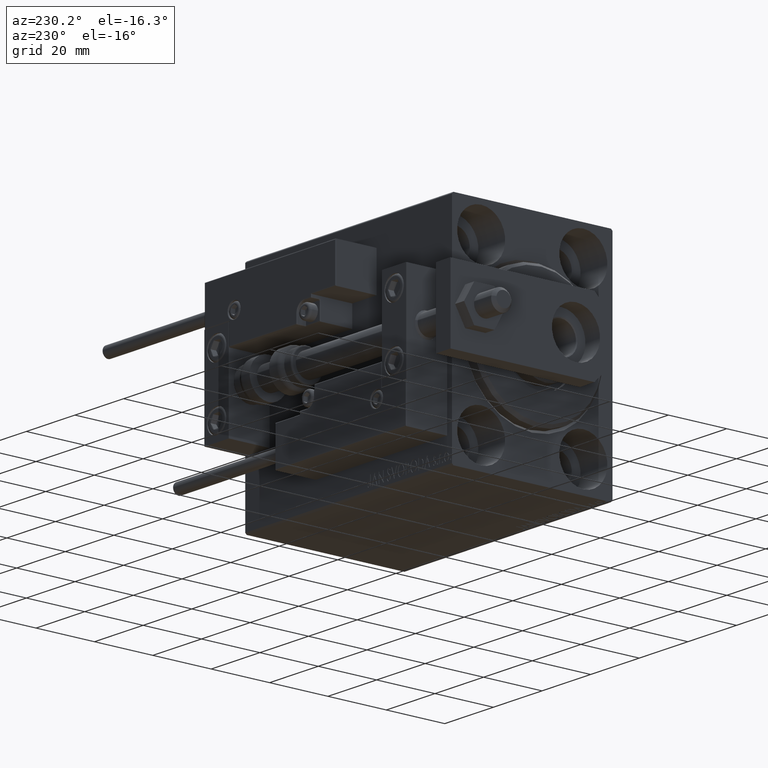
[diagram: clean part render]
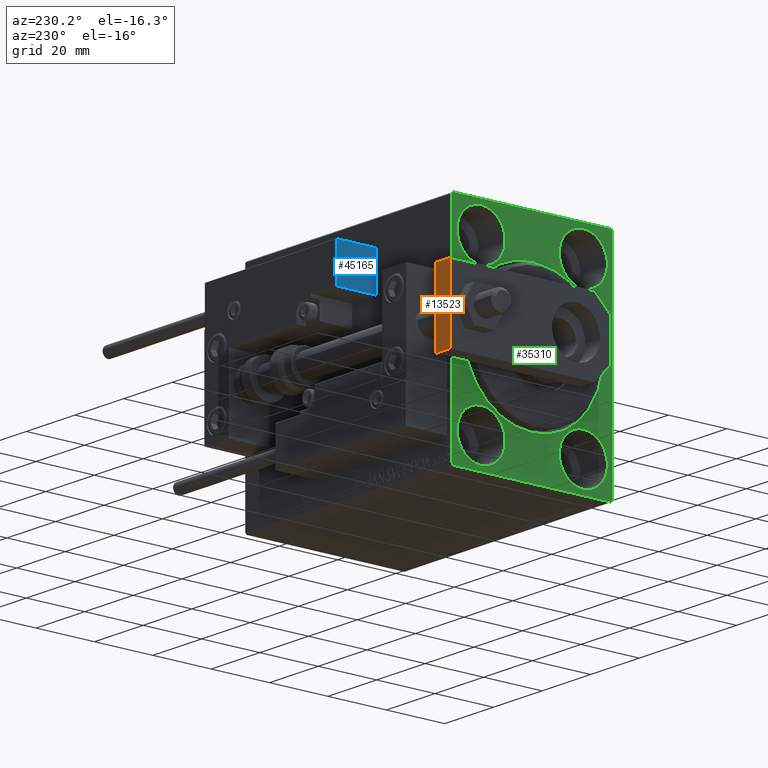
[diagram: same view with three faces highlighted in distinct colors, each labeled with its STEP entity id]
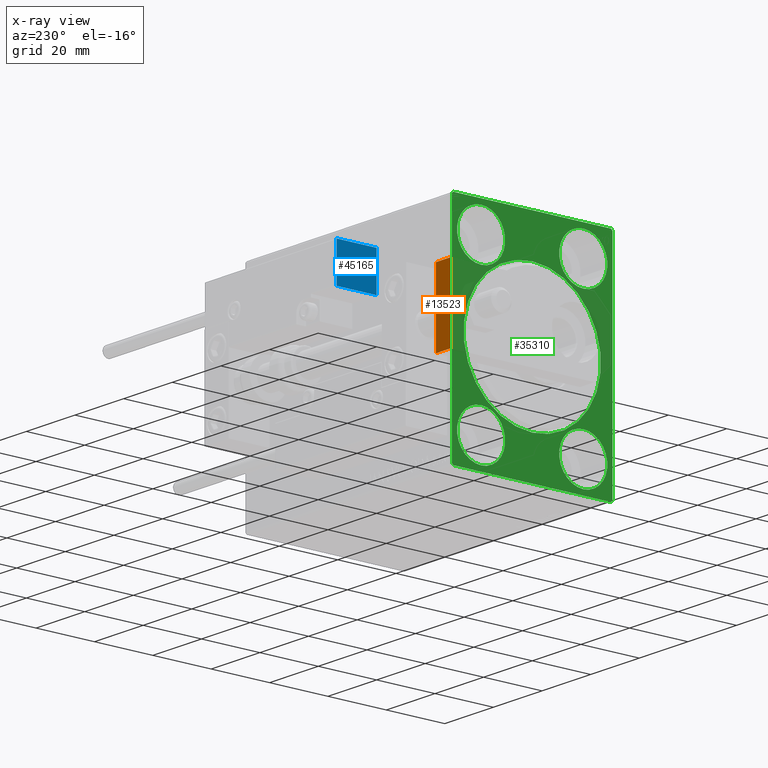
[diagram: x-ray of the same camera — body ghosted, the three highlighted faces saturated]
A machine part, auxiliary view with three faces highlighted in distinct colors.
The next image is the same camera in x-ray (body ghosted, the three faces saturated) — at least one of them is partly hidden behind the body in this view.
Their STEP definitions:

[orange] entity #13523 — the highlighted planar face has unit normal (0, -1, 0).
#3713 = EDGE_LOOP ( 'NONE', ( #43148, #31355, #46174, #42148 ) ) ;
#4052 = CARTESIAN_POINT ( 'NONE',  ( 12.50000000000000000, 55.00000000000000000, 0.000000000000000000 ) ) ;
#4285 = LINE ( 'NONE', #35058, #12305 ) ;
#5008 = CARTESIAN_POINT ( 'NONE',  ( 12.50000000000000000, 55.00000000000000000, 6.000000000000000000 ) ) ;
#10869 = VECTOR ( 'NONE', #42870, 1000.000000000000000 ) ;
#12107 = CARTESIAN_POINT ( 'NONE',  ( 12.50000000000000000, 55.00000000000000000, 6.000000000000000000 ) ) ;
#12305 = VECTOR ( 'NONE', #38609, 1000.000000000000000 ) ;
#12990 = EDGE_CURVE ( 'NONE', #25297, #26589, #46984, .T. ) ;
#13295 = FACE_OUTER_BOUND ( 'NONE', #3713, .T. ) ;
#13523 = ADVANCED_FACE ( 'NONE', ( #13295 ), #21613, .F. ) ;
#14929 = EDGE_CURVE ( 'NONE', #29411, #16383, #4285, .T. ) ;
#16383 = VERTEX_POINT ( 'NONE', #35945 ) ;
#16458 = CARTESIAN_POINT ( 'NONE',  ( -12.49999999999999822, 55.00000000000000000, 6.000000000000000000 ) ) ;
#17336 = CARTESIAN_POINT ( 'NONE',  ( 12.50000000000000000, 55.00000000000000000, 6.000000000000000000 ) ) ;
#19953 = EDGE_CURVE ( 'NONE', #29411, #25297, #23205, .T. ) ;
#21362 = DIRECTION ( 'NONE',  ( 0.000000000000000000, -0.000000000000000000, -1.000000000000000000 ) ) ;
#21613 = PLANE ( 'NONE',  #30090 ) ;
#22127 = VECTOR ( 'NONE', #43406, 1000.000000000000000 ) ;
#23205 = LINE ( 'NONE', #12107, #10869 ) ;
#23761 = DIRECTION ( 'NONE',  ( -0.000000000000000000, -0.000000000000000000, -1.000000000000000000 ) ) ;
#24550 = CARTESIAN_POINT ( 'NONE',  ( -12.49999999999999822, 55.00000000000000000, 6.000000000000000000 ) ) ;
#25260 = VECTOR ( 'NONE', #23761, 1000.000000000000000 ) ;
#25297 = VERTEX_POINT ( 'NONE', #24550 ) ;
#26589 = VERTEX_POINT ( 'NONE', #40270 ) ;
#29411 = VERTEX_POINT ( 'NONE', #5008 ) ;
#30090 = AXIS2_PLACEMENT_3D ( 'NONE', #17336, #40519, #21362 ) ;
#31355 = ORIENTED_EDGE ( 'NONE', *, *, #12990, .F. ) ;
#35058 = CARTESIAN_POINT ( 'NONE',  ( 12.50000000000000000, 55.00000000000000000, 6.000000000000000000 ) ) ;
#35945 = CARTESIAN_POINT ( 'NONE',  ( 12.50000000000000000, 55.00000000000000000, 0.000000000000000000 ) ) ;
#38609 = DIRECTION ( 'NONE',  ( -0.000000000000000000, -0.000000000000000000, -1.000000000000000000 ) ) ;
#40270 = CARTESIAN_POINT ( 'NONE',  ( -12.49999999999999822, 55.00000000000000000, 0.000000000000000000 ) ) ;
#40519 = DIRECTION ( 'NONE',  ( 0.000000000000000000, -1.000000000000000000, 0.000000000000000000 ) ) ;
#42148 = ORIENTED_EDGE ( 'NONE', *, *, #14929, .T. ) ;
#42870 = DIRECTION ( 'NONE',  ( -1.000000000000000000, 0.000000000000000000, 0.000000000000000000 ) ) ;
#43148 = ORIENTED_EDGE ( 'NONE', *, *, #44090, .T. ) ;
#43406 = DIRECTION ( 'NONE',  ( -1.000000000000000000, 0.000000000000000000, 0.000000000000000000 ) ) ;
#44090 = EDGE_CURVE ( 'NONE', #16383, #26589, #46706, .T. ) ;
#46174 = ORIENTED_EDGE ( 'NONE', *, *, #19953, .F. ) ;
#46706 = LINE ( 'NONE', #4052, #22127 ) ;
#46984 = LINE ( 'NONE', #16458, #25260 ) ;

[blue] entity #45165 — the highlighted planar face has unit normal (1, -0, -0).
#321 = EDGE_LOOP ( 'NONE', ( #13990, #7699, #45950, #40225 ) ) ;
#2483 = CARTESIAN_POINT ( 'NONE',  ( 27.00000000000006395, 20.00000000000001776, 14.00000000000000000 ) ) ;
#3497 = VERTEX_POINT ( 'NONE', #23755 ) ;
#3789 = VECTOR ( 'NONE', #31822, 1000.000000000000000 ) ;
#5933 = EDGE_CURVE ( 'NONE', #30306, #3497, #46813, .T. ) ;
#7699 = ORIENTED_EDGE ( 'NONE', *, *, #26133, .T. ) ;
#8297 = VERTEX_POINT ( 'NONE', #30192 ) ;
#10311 = DIRECTION ( 'NONE',  ( -0.000000000000000000, -0.000000000000000000, -1.000000000000000000 ) ) ;
#11209 = CARTESIAN_POINT ( 'NONE',  ( 27.00000000000006395, 20.00000000000001776, 13.70000000000000107 ) ) ;
#12448 = CARTESIAN_POINT ( 'NONE',  ( 27.00000000000006395, 7.000000000000007994, 14.00000000000000000 ) ) ;
#12500 = AXIS2_PLACEMENT_3D ( 'NONE', #12448, #48027, #20515 ) ;
#13252 = CARTESIAN_POINT ( 'NONE',  ( 27.00000000000006395, 7.000000000000007994, 14.00000000000000000 ) ) ;
#13455 = PLANE ( 'NONE',  #12500 ) ;
#13953 = VECTOR ( 'NONE', #10311, 1000.000000000000000 ) ;
#13990 = ORIENTED_EDGE ( 'NONE', *, *, #36344, .F. ) ;
#16556 = VERTEX_POINT ( 'NONE', #11209 ) ;
#16706 = LINE ( 'NONE', #23265, #3789 ) ;
#19907 = VECTOR ( 'NONE', #21982, 1000.000000000000000 ) ;
#20515 = DIRECTION ( 'NONE',  ( 0.000000000000000000, 0.000000000000000000, 1.000000000000000000 ) ) ;
#21982 = DIRECTION ( 'NONE',  ( -0.000000000000000000, -1.000000000000000000, -0.000000000000000000 ) ) ;
#22471 = LINE ( 'NONE', #44929, #19907 ) ;
#23265 = CARTESIAN_POINT ( 'NONE',  ( 27.00000000000006395, 7.000000000000007994, 0.000000000000000000 ) ) ;
#23755 = CARTESIAN_POINT ( 'NONE',  ( 27.00000000000006395, 7.000000000000007994, 0.000000000000000000 ) ) ;
#25938 = EDGE_CURVE ( 'NONE', #3497, #8297, #16706, .T. ) ;
#26133 = EDGE_CURVE ( 'NONE', #16556, #30306, #22471, .T. ) ;
#30192 = CARTESIAN_POINT ( 'NONE',  ( 27.00000000000006395, 20.00000000000001776, 0.000000000000000000 ) ) ;
#30306 = VERTEX_POINT ( 'NONE', #31687 ) ;
#31687 = CARTESIAN_POINT ( 'NONE',  ( 27.00000000000006395, 7.000000000000007994, 13.70000000000000107 ) ) ;
#31822 = DIRECTION ( 'NONE',  ( 0.000000000000000000, 1.000000000000000000, 0.000000000000000000 ) ) ;
#35434 = DIRECTION ( 'NONE',  ( -0.000000000000000000, -0.000000000000000000, -1.000000000000000000 ) ) ;
#36288 = VECTOR ( 'NONE', #35434, 1000.000000000000000 ) ;
#36344 = EDGE_CURVE ( 'NONE', #16556, #8297, #44871, .T. ) ;
#40225 = ORIENTED_EDGE ( 'NONE', *, *, #25938, .T. ) ;
#40429 = FACE_OUTER_BOUND ( 'NONE', #321, .T. ) ;
#44871 = LINE ( 'NONE', #2483, #13953 ) ;
#44929 = CARTESIAN_POINT ( 'NONE',  ( 27.00000000000006395, 7.000000000000007994, 13.70000000000000107 ) ) ;
#45165 = ADVANCED_FACE ( 'NONE', ( #40429 ), #13455, .F. ) ;
#45950 = ORIENTED_EDGE ( 'NONE', *, *, #5933, .T. ) ;
#46813 = LINE ( 'NONE', #13252, #36288 ) ;
#48027 = DIRECTION ( 'NONE',  ( -1.000000000000000000, 0.000000000000000000, 0.000000000000000000 ) ) ;

[green] entity #35310 — the highlighted planar face has unit normal (1, 0, 0).
#213 = DIRECTION ( 'NONE',  ( 0.000000000000000000, 0.000000000000000000, 1.000000000000000000 ) ) ;
#445 = AXIS2_PLACEMENT_3D ( 'NONE', #12811, #31220, #43326 ) ;
#453 = EDGE_CURVE ( 'NONE', #10582, #17920, #1209, .T. ) ;
#509 = CARTESIAN_POINT ( 'NONE',  ( 0.000000000000000000, 27.50000000000000355, -37.50000000000000000 ) ) ;
#747 = CIRCLE ( 'NONE', #15243, 8.250000000000000000 ) ;
#1039 = CARTESIAN_POINT ( 'NONE',  ( 0.000000000000000000, 27.50000000000000355, -37.00000000000000000 ) ) ;
#1209 = LINE ( 'NONE', #47398, #42496 ) ;
#1260 = EDGE_CURVE ( 'NONE', #44784, #21614, #3849, .T. ) ;
#2741 = EDGE_CURVE ( 'NONE', #21614, #44784, #747, .T. ) ;
#2848 = CARTESIAN_POINT ( 'NONE',  ( 0.000000000000000000, 17.49999999999999645, -27.50000000000000355 ) ) ;
#2966 = AXIS2_PLACEMENT_3D ( 'NONE', #45280, #26099, #46278 ) ;
#3422 = AXIS2_PLACEMENT_3D ( 'NONE', #40537, #21383, #36751 ) ;
#3454 = EDGE_CURVE ( 'NONE', #25897, #10338, #13694, .T. ) ;
#3849 = CIRCLE ( 'NONE', #20796, 8.250000000000000000 ) ;
#5226 = VERTEX_POINT ( 'NONE', #25868 ) ;
#5256 = DIRECTION ( 'NONE',  ( 0.000000000000000000, 1.000000000000000000, 0.000000000000000000 ) ) ;
#5457 = CARTESIAN_POINT ( 'NONE',  ( 0.000000000000000000, -17.49999999999999645, 27.49999999999999645 ) ) ;
#5553 = VERTEX_POINT ( 'NONE', #33584 ) ;
#6161 = CARTESIAN_POINT ( 'NONE',  ( 0.000000000000000000, 27.49999999999999645, 37.50000000000000711 ) ) ;
#6650 = DIRECTION ( 'NONE',  ( -1.000000000000000000, 0.000000000000000000, 0.000000000000000000 ) ) ;
#6673 = DIRECTION ( 'NONE',  ( -1.000000000000000000, 0.000000000000000000, 0.000000000000000000 ) ) ;
#6728 = FACE_BOUND ( 'NONE', #41739, .T. ) ;
#7085 = CARTESIAN_POINT ( 'NONE',  ( 0.000000000000000000, -27.00000000000000355, -37.50000000000000000 ) ) ;
#7581 = DIRECTION ( 'NONE',  ( 1.000000000000000000, 0.000000000000000000, 0.000000000000000000 ) ) ;
#7760 = AXIS2_PLACEMENT_3D ( 'NONE', #17104, #41041, #28692 ) ;
#7955 = CARTESIAN_POINT ( 'NONE',  ( 0.000000000000000000, -27.00000000000000355, -37.50000000000000000 ) ) ;
#8106 = CARTESIAN_POINT ( 'NONE',  ( 0.000000000000000000, 17.50000000000000355, 35.74999999999999289 ) ) ;
#8532 = ORIENTED_EDGE ( 'NONE', *, *, #24110, .F. ) ;
#8577 = VERTEX_POINT ( 'NONE', #8106 ) ;
#8799 = CARTESIAN_POINT ( 'NONE',  ( 0.000000000000000000, -17.50000000000000355, -27.50000000000000355 ) ) ;
#9356 = EDGE_CURVE ( 'NONE', #37621, #29883, #35596, .T. ) ;
#9621 = EDGE_CURVE ( 'NONE', #42504, #18060, #24254, .T. ) ;
#9760 = CARTESIAN_POINT ( 'NONE',  ( 0.000000000000000000, -17.49999999999999645, 35.74999999999999289 ) ) ;
#10338 = VERTEX_POINT ( 'NONE', #28663 ) ;
#10582 = VERTEX_POINT ( 'NONE', #29897 ) ;
#10720 = ORIENTED_EDGE ( 'NONE', *, *, #453, .F. ) ;
#10881 = DIRECTION ( 'NONE',  ( 0.000000000000000000, 0.000000000000000000, -1.000000000000000000 ) ) ;
#12811 = CARTESIAN_POINT ( 'NONE',  ( 0.000000000000000000, 0.000000000000000000, 0.000000000000000000 ) ) ;
#12858 = AXIS2_PLACEMENT_3D ( 'NONE', #2848, #44983, #18258 ) ;
#12866 = EDGE_LOOP ( 'NONE', ( #48806, #30926 ) ) ;
#13398 = CIRCLE ( 'NONE', #7760, 8.249999999999992895 ) ;
#13483 = DIRECTION ( 'NONE',  ( 0.000000000000000000, 0.000000000000000000, 1.000000000000000000 ) ) ;
#13694 = CIRCLE ( 'NONE', #12858, 8.250000000000000000 ) ;
#14516 = EDGE_CURVE ( 'NONE', #10338, #25897, #49375, .T. ) ;
#14819 = EDGE_CURVE ( 'NONE', #22672, #5226, #35655, .T. ) ;
#14941 = EDGE_CURVE ( 'NONE', #42504, #20061, #19694, .T. ) ;
#15243 = AXIS2_PLACEMENT_3D ( 'NONE', #8799, #39563, #34771 ) ;
#15415 = CARTESIAN_POINT ( 'NONE',  ( 0.000000000000000000, 0.000000000000000000, 0.000000000000000000 ) ) ;
#15808 = AXIS2_PLACEMENT_3D ( 'NONE', #21819, #6673, #37444 ) ;
#15920 = DIRECTION ( 'NONE',  ( 0.000000000000000000, -9.251858538542970348E-17, 1.000000000000000000 ) ) ;
#16493 = ORIENTED_EDGE ( 'NONE', *, *, #44533, .F. ) ;
#16744 = VERTEX_POINT ( 'NONE', #38431 ) ;
#17101 = FACE_BOUND ( 'NONE', #12866, .T. ) ;
#17104 = CARTESIAN_POINT ( 'NONE',  ( 0.000000000000000000, 17.50000000000000355, 27.49999999999999645 ) ) ;
#17283 = LINE ( 'NONE', #6161, #38023 ) ;
#17920 = VERTEX_POINT ( 'NONE', #49218 ) ;
#17942 = AXIS2_PLACEMENT_3D ( 'NONE', #15415, #7581, #10881 ) ;
#18060 = VERTEX_POINT ( 'NONE', #46170 ) ;
#18258 = DIRECTION ( 'NONE',  ( 0.000000000000000000, 0.000000000000000000, 1.000000000000000000 ) ) ;
#18880 = EDGE_CURVE ( 'NONE', #16744, #20061, #45741, .T. ) ;
#19099 = ORIENTED_EDGE ( 'NONE', *, *, #26189, .T. ) ;
#19146 = EDGE_CURVE ( 'NONE', #37831, #17920, #22720, .T. ) ;
#19537 = ORIENTED_EDGE ( 'NONE', *, *, #34678, .F. ) ;
#19693 = VECTOR ( 'NONE', #38655, 1000.000000000000000 ) ;
#19694 = LINE ( 'NONE', #509, #34830 ) ;
#20061 = VERTEX_POINT ( 'NONE', #47674 ) ;
#20294 = VECTOR ( 'NONE', #43931, 1000.000000000000114 ) ;
#20732 = VECTOR ( 'NONE', #45677, 1000.000000000000114 ) ;
#20796 = AXIS2_PLACEMENT_3D ( 'NONE', #43097, #23924, #213 ) ;
#20809 = DIRECTION ( 'NONE',  ( 0.000000000000000000, -1.000000000000000000, -1.261617073437677999E-16 ) ) ;
#20890 = DIRECTION ( 'NONE',  ( 0.000000000000000000, 0.000000000000000000, -1.000000000000000000 ) ) ;
#21063 = CARTESIAN_POINT ( 'NONE',  ( 0.000000000000000000, 27.50000000000000355, -37.00000000000000000 ) ) ;
#21098 = DIRECTION ( 'NONE',  ( 0.000000000000000000, 0.000000000000000000, 1.000000000000000000 ) ) ;
#21146 = LINE ( 'NONE', #39553, #40646 ) ;
#21383 = DIRECTION ( 'NONE',  ( 1.000000000000000000, 0.000000000000000000, 0.000000000000000000 ) ) ;
#21614 = VERTEX_POINT ( 'NONE', #26623 ) ;
#21819 = CARTESIAN_POINT ( 'NONE',  ( 0.000000000000000000, 17.50000000000000355, 27.49999999999999645 ) ) ;
#22215 = CIRCLE ( 'NONE', #445, 23.50000000000000355 ) ;
#22672 = VERTEX_POINT ( 'NONE', #44633 ) ;
#22720 = LINE ( 'NONE', #7085, #46270 ) ;
#22776 = EDGE_CURVE ( 'NONE', #5226, #22672, #22215, .T. ) ;
#22791 = EDGE_LOOP ( 'NONE', ( #47801, #39690 ) ) ;
#23132 = CIRCLE ( 'NONE', #2966, 8.249999999999992895 ) ;
#23275 = ORIENTED_EDGE ( 'NONE', *, *, #23646, .F. ) ;
#23646 = EDGE_CURVE ( 'NONE', #38041, #8577, #13398, .T. ) ;
#23924 = DIRECTION ( 'NONE',  ( -1.000000000000000000, 0.000000000000000000, 0.000000000000000000 ) ) ;
#24110 = EDGE_CURVE ( 'NONE', #8577, #38041, #35107, .T. ) ;
#24254 = LINE ( 'NONE', #1039, #20294 ) ;
#25146 = PLANE ( 'NONE',  #3422 ) ;
#25797 = ORIENTED_EDGE ( 'NONE', *, *, #9356, .F. ) ;
#25868 = CARTESIAN_POINT ( 'NONE',  ( 0.000000000000000000, 2.877919977996280715E-15, -23.50000000000000355 ) ) ;
#25897 = VERTEX_POINT ( 'NONE', #41450 ) ;
#26047 = DIRECTION ( 'NONE',  ( -1.000000000000000000, 0.000000000000000000, 0.000000000000000000 ) ) ;
#26099 = DIRECTION ( 'NONE',  ( -1.000000000000000000, 0.000000000000000000, 0.000000000000000000 ) ) ;
#26189 = EDGE_CURVE ( 'NONE', #10582, #5553, #34553, .T. ) ;
#26325 = CARTESIAN_POINT ( 'NONE',  ( 0.000000000000000000, 17.50000000000000355, 19.25000000000000000 ) ) ;
#26623 = CARTESIAN_POINT ( 'NONE',  ( 0.000000000000000000, -17.50000000000000355, -35.75000000000000711 ) ) ;
#26754 = ORIENTED_EDGE ( 'NONE', *, *, #19146, .T. ) ;
#27482 = ORIENTED_EDGE ( 'NONE', *, *, #3454, .F. ) ;
#27518 = AXIS2_PLACEMENT_3D ( 'NONE', #5457, #26047, #21098 ) ;
#28663 = CARTESIAN_POINT ( 'NONE',  ( 0.000000000000000000, 17.49999999999999645, -35.75000000000000711 ) ) ;
#28689 = FACE_BOUND ( 'NONE', #22791, .T. ) ;
#28692 = DIRECTION ( 'NONE',  ( 0.000000000000000000, 0.000000000000000000, 1.000000000000000000 ) ) ;
#28711 = EDGE_CURVE ( 'NONE', #29883, #37621, #23132, .T. ) ;
#29883 = VERTEX_POINT ( 'NONE', #35595 ) ;
#29897 = CARTESIAN_POINT ( 'NONE',  ( 0.000000000000000000, -27.50000000000000355, 37.00000000000000000 ) ) ;
#30808 = AXIS2_PLACEMENT_3D ( 'NONE', #48057, #6650, #13483 ) ;
#30926 = ORIENTED_EDGE ( 'NONE', *, *, #22776, .T. ) ;
#31080 = CARTESIAN_POINT ( 'NONE',  ( 0.000000000000000000, 26.99999999999999645, 37.50000000000000711 ) ) ;
#31220 = DIRECTION ( 'NONE',  ( 1.000000000000000000, 0.000000000000000000, 0.000000000000000000 ) ) ;
#31589 = ORIENTED_EDGE ( 'NONE', *, *, #18880, .T. ) ;
#32720 = FACE_BOUND ( 'NONE', #38324, .T. ) ;
#33584 = CARTESIAN_POINT ( 'NONE',  ( 0.000000000000000000, -27.00000000000000355, 37.50000000000000000 ) ) ;
#33826 = DIRECTION ( 'NONE',  ( -0.000000000000000000, -0.7071067811865474617, 0.7071067811865474617 ) ) ;
#34320 = ORIENTED_EDGE ( 'NONE', *, *, #14516, .F. ) ;
#34553 = LINE ( 'NONE', #38090, #20732 ) ;
#34661 = ORIENTED_EDGE ( 'NONE', *, *, #28711, .F. ) ;
#34678 = EDGE_CURVE ( 'NONE', #16744, #5553, #17283, .T. ) ;
#34771 = DIRECTION ( 'NONE',  ( 0.000000000000000000, 0.000000000000000000, 1.000000000000000000 ) ) ;
#34830 = VECTOR ( 'NONE', #15920, 1000.000000000000000 ) ;
#35107 = CIRCLE ( 'NONE', #15808, 8.249999999999992895 ) ;
#35310 = ADVANCED_FACE ( 'NONE', ( #17101, #32720, #47885, #6728, #28689, #44079 ), #25146, .F. ) ;
#35595 = CARTESIAN_POINT ( 'NONE',  ( 0.000000000000000000, -17.49999999999999645, 19.25000000000000000 ) ) ;
#35596 = CIRCLE ( 'NONE', #27518, 8.249999999999992895 ) ;
#35655 = CIRCLE ( 'NONE', #17942, 23.50000000000000355 ) ;
#35866 = ORIENTED_EDGE ( 'NONE', *, *, #14941, .F. ) ;
#36751 = DIRECTION ( 'NONE',  ( 0.000000000000000000, 0.000000000000000000, -1.000000000000000000 ) ) ;
#37006 = ORIENTED_EDGE ( 'NONE', *, *, #9621, .T. ) ;
#37444 = DIRECTION ( 'NONE',  ( 0.000000000000000000, 0.000000000000000000, 1.000000000000000000 ) ) ;
#37621 = VERTEX_POINT ( 'NONE', #9760 ) ;
#37758 = EDGE_LOOP ( 'NONE', ( #25797, #34661 ) ) ;
#37831 = VERTEX_POINT ( 'NONE', #7955 ) ;
#38023 = VECTOR ( 'NONE', #20809, 1000.000000000000000 ) ;
#38041 = VERTEX_POINT ( 'NONE', #26325 ) ;
#38090 = CARTESIAN_POINT ( 'NONE',  ( 0.000000000000000000, -27.50000000000000355, 37.00000000000000000 ) ) ;
#38324 = EDGE_LOOP ( 'NONE', ( #27482, #34320 ) ) ;
#38431 = CARTESIAN_POINT ( 'NONE',  ( 0.000000000000000000, 26.99999999999999645, 37.50000000000000711 ) ) ;
#38655 = DIRECTION ( 'NONE',  ( -0.000000000000000000, 0.7071067811865524577, -0.7071067811865426878 ) ) ;
#39553 = CARTESIAN_POINT ( 'NONE',  ( 0.000000000000000000, -27.50000000000000355, -37.50000000000000000 ) ) ;
#39563 = DIRECTION ( 'NONE',  ( -1.000000000000000000, 0.000000000000000000, 0.000000000000000000 ) ) ;
#39690 = ORIENTED_EDGE ( 'NONE', *, *, #2741, .F. ) ;
#40537 = CARTESIAN_POINT ( 'NONE',  ( 0.000000000000000000, 0.000000000000000000, 0.000000000000000000 ) ) ;
#40646 = VECTOR ( 'NONE', #5256, 1000.000000000000000 ) ;
#40710 = CARTESIAN_POINT ( 'NONE',  ( 0.000000000000000000, -17.50000000000000355, -19.25000000000000355 ) ) ;
#41041 = DIRECTION ( 'NONE',  ( -1.000000000000000000, 0.000000000000000000, 0.000000000000000000 ) ) ;
#41450 = CARTESIAN_POINT ( 'NONE',  ( 0.000000000000000000, 17.49999999999999645, -19.25000000000000355 ) ) ;
#41739 = EDGE_LOOP ( 'NONE', ( #8532, #23275 ) ) ;
#42496 = VECTOR ( 'NONE', #20890, 1000.000000000000000 ) ;
#42504 = VERTEX_POINT ( 'NONE', #21063 ) ;
#43097 = CARTESIAN_POINT ( 'NONE',  ( 0.000000000000000000, -17.50000000000000355, -27.50000000000000355 ) ) ;
#43326 = DIRECTION ( 'NONE',  ( 0.000000000000000000, 0.000000000000000000, -1.000000000000000000 ) ) ;
#43931 = DIRECTION ( 'NONE',  ( 0.000000000000000000, -0.7071067811865474617, -0.7071067811865474617 ) ) ;
#44079 = FACE_OUTER_BOUND ( 'NONE', #49807, .T. ) ;
#44533 = EDGE_CURVE ( 'NONE', #37831, #18060, #21146, .T. ) ;
#44633 = CARTESIAN_POINT ( 'NONE',  ( 0.000000000000000000, 0.000000000000000000, 23.50000000000000355 ) ) ;
#44784 = VERTEX_POINT ( 'NONE', #40710 ) ;
#44983 = DIRECTION ( 'NONE',  ( -1.000000000000000000, 0.000000000000000000, 0.000000000000000000 ) ) ;
#45280 = CARTESIAN_POINT ( 'NONE',  ( 0.000000000000000000, -17.49999999999999645, 27.49999999999999645 ) ) ;
#45677 = DIRECTION ( 'NONE',  ( -0.000000000000000000, 0.7071067811865474617, 0.7071067811865474617 ) ) ;
#45741 = LINE ( 'NONE', #31080, #19693 ) ;
#46170 = CARTESIAN_POINT ( 'NONE',  ( 0.000000000000000000, 27.00000000000000355, -37.50000000000000000 ) ) ;
#46270 = VECTOR ( 'NONE', #33826, 1000.000000000000114 ) ;
#46278 = DIRECTION ( 'NONE',  ( 0.000000000000000000, 0.000000000000000000, 1.000000000000000000 ) ) ;
#47398 = CARTESIAN_POINT ( 'NONE',  ( 0.000000000000000000, -27.50000000000000355, 37.50000000000000000 ) ) ;
#47674 = CARTESIAN_POINT ( 'NONE',  ( 0.000000000000000000, 27.49999999999999645, 37.00000000000001421 ) ) ;
#47801 = ORIENTED_EDGE ( 'NONE', *, *, #1260, .F. ) ;
#47885 = FACE_BOUND ( 'NONE', #37758, .T. ) ;
#48057 = CARTESIAN_POINT ( 'NONE',  ( 0.000000000000000000, 17.49999999999999645, -27.50000000000000355 ) ) ;
#48806 = ORIENTED_EDGE ( 'NONE', *, *, #14819, .T. ) ;
#49218 = CARTESIAN_POINT ( 'NONE',  ( 0.000000000000000000, -27.50000000000000355, -37.00000000000000000 ) ) ;
#49375 = CIRCLE ( 'NONE', #30808, 8.250000000000000000 ) ;
#49807 = EDGE_LOOP ( 'NONE', ( #10720, #19099, #19537, #31589, #35866, #37006, #16493, #26754 ) ) ;